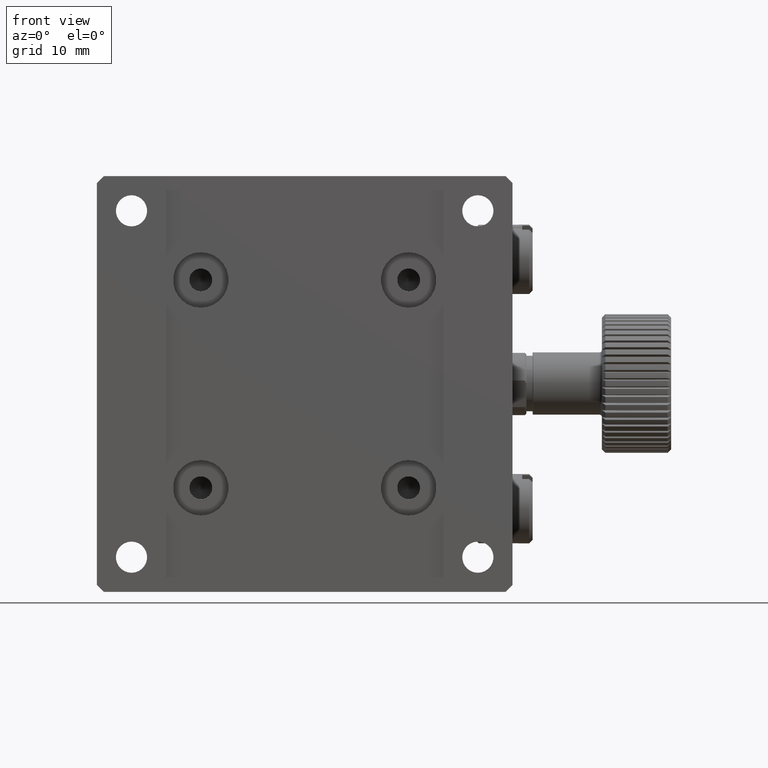
[diagram: clean part render]
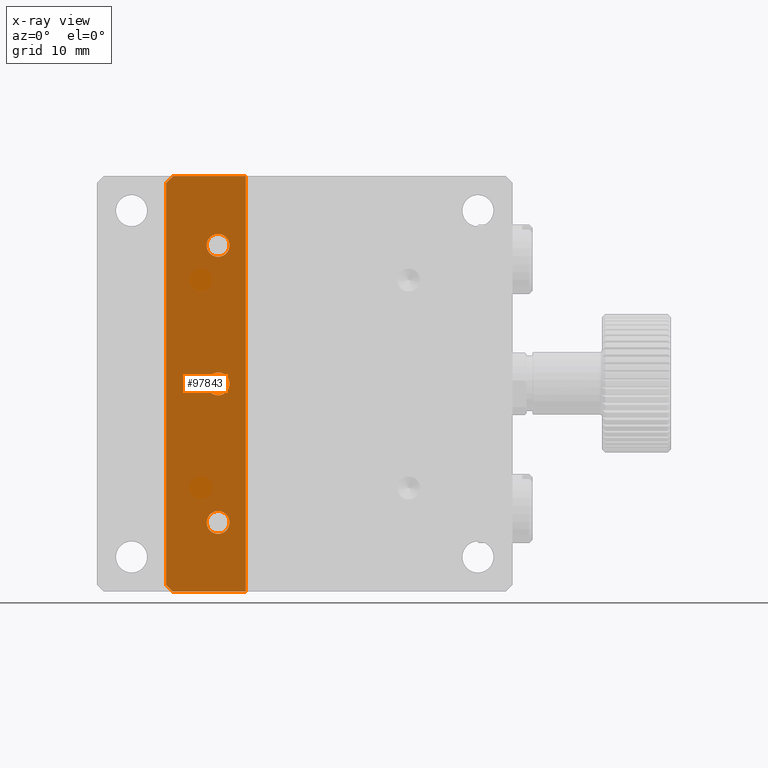
[diagram: x-ray — body ghosted, one internal face saturated and labeled with its STEP entity id]
A machine part, front view, then the same camera in x-ray: the body is ghosted and one INTERNAL B-rep face — a face not visible from any outside direction — is saturated and labeled: STEP entity #97843.
In plain terms, the highlighted planar face has unit normal (-0, 1, 0).
Its self-contained STEP definition (entity closure, byte-faithful):
#6029 = VERTEX_POINT ( 'NONE', #46755 ) ;
#8310 = DIRECTION ( 'NONE',  ( 0.000000000000000000, 0.000000000000000000, -1.000000000000000000 ) ) ;
#8738 = LINE ( 'NONE', #34283, #40002 ) ;
#10315 = DIRECTION ( 'NONE',  ( -1.000000000000000000, 0.000000000000000000, -0.000000000000000000 ) ) ;
#10667 = LINE ( 'NONE', #69335, #89173 ) ;
#11251 = ORIENTED_EDGE ( 'NONE', *, *, #95838, .T. ) ;
#12053 = ORIENTED_EDGE ( 'NONE', *, *, #91343, .F. ) ;
#12517 = CARTESIAN_POINT ( 'NONE',  ( 10.00000000000281908, 20.00000000000313349, 1.000000000000001998 ) ) ;
#12738 = AXIS2_PLACEMENT_3D ( 'NONE', #65982, #49674, #92048 ) ;
#13319 = CARTESIAN_POINT ( 'NONE',  ( 10.00000000000281908, 20.00000000000313349, 59.99999999999998579 ) ) ;
#16728 = VERTEX_POINT ( 'NONE', #93667 ) ;
#19747 = CARTESIAN_POINT ( 'NONE',  ( 21.50000000000281730, 20.00000000000313349, 59.99999999999998579 ) ) ;
#21484 = FACE_BOUND ( 'NONE', #33820, .T. ) ;
#22957 = LINE ( 'NONE', #103936, #97857 ) ;
#23379 = VECTOR ( 'NONE', #10315, 1000.000000000000000 ) ;
#25093 = VERTEX_POINT ( 'NONE', #102442 ) ;
#25803 = VERTEX_POINT ( 'NONE', #104060 ) ;
#26683 = EDGE_CURVE ( 'NONE', #66970, #66970, #69153, .T. ) ;
#29595 = LINE ( 'NONE', #72465, #58303 ) ;
#32766 = EDGE_CURVE ( 'NONE', #67515, #67515, #68859, .T. ) ;
#33820 = EDGE_LOOP ( 'NONE', ( #67514 ) ) ;
#34283 = CARTESIAN_POINT ( 'NONE',  ( 10.00000000000281908, 20.00000000000313349, 1.000000000000004441 ) ) ;
#35044 = EDGE_LOOP ( 'NONE', ( #11251 ) ) ;
#35749 = VECTOR ( 'NONE', #8310, 1000.000000000000000 ) ;
#40002 = VECTOR ( 'NONE', #100554, 1000.000000000000114 ) ;
#42533 = CARTESIAN_POINT ( 'NONE',  ( 17.49999999999858602, 20.00000000000313349, 51.64999999999997726 ) ) ;
#45033 = CARTESIAN_POINT ( 'NONE',  ( 17.49999999999858957, 20.00000000000313349, 9.999999999999984013 ) ) ;
#46494 = DIRECTION ( 'NONE',  ( -1.508455196501571429E-16, 1.000000000000000000, 0.000000000000000000 ) ) ;
#46755 = CARTESIAN_POINT ( 'NONE',  ( 11.00000000000284039, 20.00000000000313349, -1.214306433201859542E-14 ) ) ;
#47263 = EDGE_CURVE ( 'NONE', #6029, #84226, #8738, .T. ) ;
#47440 = EDGE_LOOP ( 'NONE', ( #73495, #12053, #92060, #84357, #49731, #91175 ) ) ;
#48084 = DIRECTION ( 'NONE',  ( -1.000000000000000000, -1.508455196501571429E-16, 0.000000000000000000 ) ) ;
#49674 = DIRECTION ( 'NONE',  ( 0.000000000000000000, 1.000000000000000000, 0.000000000000000000 ) ) ;
#49731 = ORIENTED_EDGE ( 'NONE', *, *, #79972, .F. ) ;
#49782 = AXIS2_PLACEMENT_3D ( 'NONE', #45033, #95008, #69471 ) ;
#52683 = AXIS2_PLACEMENT_3D ( 'NONE', #13319, #46494, #48084 ) ;
#54622 = FACE_BOUND ( 'NONE', #71634, .T. ) ;
#56712 = LINE ( 'NONE', #100123, #35749 ) ;
#58303 = VECTOR ( 'NONE', #104556, 1000.000000000000114 ) ;
#58685 = LINE ( 'NONE', #77670, #23379 ) ;
#64377 = FACE_BOUND ( 'NONE', #35044, .T. ) ;
#65982 = CARTESIAN_POINT ( 'NONE',  ( 17.49999999999859313, 20.00000000000313349, 29.99999999999998934 ) ) ;
#66314 = VERTEX_POINT ( 'NONE', #74453 ) ;
#66970 = VERTEX_POINT ( 'NONE', #42533 ) ;
#67514 = ORIENTED_EDGE ( 'NONE', *, *, #26683, .T. ) ;
#67515 = VERTEX_POINT ( 'NONE', #83288 ) ;
#68859 = CIRCLE ( 'NONE', #49782, 1.649999999999995248 ) ;
#69153 = CIRCLE ( 'NONE', #70870, 1.649999999999991696 ) ;
#69335 = CARTESIAN_POINT ( 'NONE',  ( 29.99999999999858957, 20.00000000000313349, -1.040834085658462245E-14 ) ) ;
#69471 = DIRECTION ( 'NONE',  ( 0.000000000000000000, 0.000000000000000000, 1.000000000000000000 ) ) ;
#70870 = AXIS2_PLACEMENT_3D ( 'NONE', #80701, #96458, #72523 ) ;
#71634 = EDGE_LOOP ( 'NONE', ( #88195 ) ) ;
#72465 = CARTESIAN_POINT ( 'NONE',  ( 10.00000000000281908, 20.00000000000313349, 58.99999999999997158 ) ) ;
#72523 = DIRECTION ( 'NONE',  ( 0.000000000000000000, 0.000000000000000000, 1.000000000000000000 ) ) ;
#73495 = ORIENTED_EDGE ( 'NONE', *, *, #47263, .F. ) ;
#74453 = CARTESIAN_POINT ( 'NONE',  ( 17.49999999999859313, 20.00000000000313349, 31.64999999999998437 ) ) ;
#77670 = CARTESIAN_POINT ( 'NONE',  ( 29.99999999999858957, 20.00000000000313349, 59.99999999999998579 ) ) ;
#79117 = DIRECTION ( 'NONE',  ( -1.000000000000000000, 0.000000000000000000, -0.000000000000000000 ) ) ;
#79972 = EDGE_CURVE ( 'NONE', #25803, #25093, #29595, .T. ) ;
#80697 = EDGE_CURVE ( 'NONE', #25803, #84226, #56712, .T. ) ;
#80701 = CARTESIAN_POINT ( 'NONE',  ( 17.49999999999858602, 20.00000000000313349, 49.99999999999998579 ) ) ;
#83288 = CARTESIAN_POINT ( 'NONE',  ( 17.49999999999858957, 20.00000000000313349, 11.64999999999997904 ) ) ;
#84226 = VERTEX_POINT ( 'NONE', #12517 ) ;
#84357 = ORIENTED_EDGE ( 'NONE', *, *, #103109, .T. ) ;
#87778 = PLANE ( 'NONE',  #52683 ) ;
#88101 = EDGE_CURVE ( 'NONE', #16728, #96908, #22957, .T. ) ;
#88195 = ORIENTED_EDGE ( 'NONE', *, *, #32766, .T. ) ;
#88721 = DIRECTION ( 'NONE',  ( -0.000000000000000000, 0.000000000000000000, 1.000000000000000000 ) ) ;
#89173 = VECTOR ( 'NONE', #79117, 1000.000000000000000 ) ;
#91175 = ORIENTED_EDGE ( 'NONE', *, *, #80697, .T. ) ;
#91343 = EDGE_CURVE ( 'NONE', #16728, #6029, #10667, .T. ) ;
#92048 = DIRECTION ( 'NONE',  ( 0.000000000000000000, 0.000000000000000000, 1.000000000000000000 ) ) ;
#92060 = ORIENTED_EDGE ( 'NONE', *, *, #88101, .T. ) ;
#93667 = CARTESIAN_POINT ( 'NONE',  ( 21.50000000000281375, 20.00000000000313349, -1.301042607000699897E-14 ) ) ;
#95008 = DIRECTION ( 'NONE',  ( 0.000000000000000000, 1.000000000000000000, 0.000000000000000000 ) ) ;
#95838 = EDGE_CURVE ( 'NONE', #66314, #66314, #99434, .T. ) ;
#96458 = DIRECTION ( 'NONE',  ( 0.000000000000000000, 1.000000000000000000, 0.000000000000000000 ) ) ;
#96908 = VERTEX_POINT ( 'NONE', #19747 ) ;
#97843 = ADVANCED_FACE ( 'NONE', ( #105673, #21484, #64377, #54622 ), #87778, .F. ) ;
#97857 = VECTOR ( 'NONE', #88721, 1000.000000000000000 ) ;
#99434 = CIRCLE ( 'NONE', #12738, 1.649999999999995248 ) ;
#100123 = CARTESIAN_POINT ( 'NONE',  ( 10.00000000000281908, 20.00000000000313349, 59.99999999999998579 ) ) ;
#100554 = DIRECTION ( 'NONE',  ( -0.7071067811865500152, 0.000000000000000000, 0.7071067811865451302 ) ) ;
#102442 = CARTESIAN_POINT ( 'NONE',  ( 11.00000000000283329, 20.00000000000313349, 59.99999999999998579 ) ) ;
#103109 = EDGE_CURVE ( 'NONE', #96908, #25093, #58685, .T. ) ;
#103936 = CARTESIAN_POINT ( 'NONE',  ( 21.50000000000281730, 20.00000000000313349, 59.99999999999998579 ) ) ;
#104060 = CARTESIAN_POINT ( 'NONE',  ( 10.00000000000282263, 20.00000000000312994, 58.99999999999997158 ) ) ;
#104556 = DIRECTION ( 'NONE',  ( 0.7071067811865474617, 0.000000000000000000, 0.7071067811865474617 ) ) ;
#105673 = FACE_OUTER_BOUND ( 'NONE', #47440, .T. ) ;